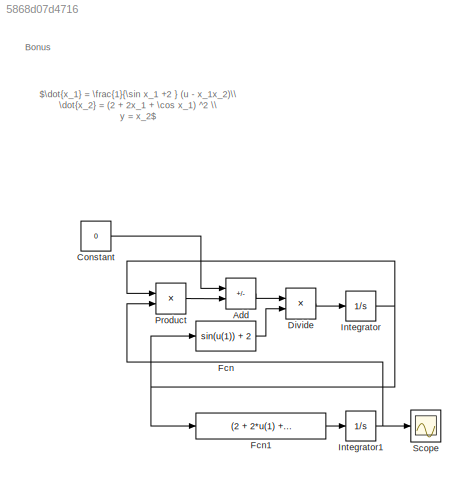
MODEL slx_5868d07d4716
KIND model
CONFIG AbsTol = auto
CONFIG EnableMultiTasking = off
CONFIG FixedStep = auto
CONFIG MaxStep = auto
CONFIG MinStep = auto
CONFIG RelTol = 1e-8
CONFIG SampleTimeConstraint = Unconstrained
CONFIG Solver = ode45
CONFIG SolverName = ode45
CONFIG StartTime = 0.0
CONFIG StopTime = 10
BLOCK [Sum] Add
  IconShape = rectangular
  Inputs = +-
  Ports = [2, 1]
BLOCK [Constant] Constant
  Value = 0
BLOCK [Product] Divide
  Inputs = */
  Ports = [2, 1]
BLOCK [Fcn] Fcn
  Expr = sin(u(1)) + 2
BLOCK [Fcn] Fcn1
  Expr = (2 + 2*u(1) + cos(u(1)))^2
BLOCK [Integrator] Integrator
  InitialCondition = -1.18715
  Ports = [1, 1]
BLOCK [Integrator] Integrator1
  Ports = [1, 1]
BLOCK [Product] Product
  Ports = [2, 1]
BLOCK [Scope] Scope
  Floating = off
  NumInputPorts = 1
  Ports = [1]
  ScopeSpecificationString = Simulink.scopes.TimeScopeBlockCfg('CurrentConfiguration', extmgr.ConfigurationSet(extmgr.Configuration('Core','General UI',true),extmgr.Configuration('Core','Source UI',true),extmgr.Configuration('Sources','WiredSimulink',true,'DataLoggingVariableName','ScopeData1'),extmgr.Configuration('Visuals','Time Domain',true,'SerializedDisplays',{struct('MinYLimReal','-0.00000000002','MaxYLimReal','0.000000...<+1443ch>
ANNOTATION (root): $\dot{x_1} = \frac{1}{\sin x_1 +2 } (u - x_1x_2)\\ \dot{x_2} = (2 + 2x_1 + \cos x_1) ^2 \\ y = x_2$
ANNOTATION (root): Bonus
LINE Add:1 -> Divide:1
LINE Constant:1 -> Add:1
LINE Divide:1 -> Integrator:1
LINE Fcn1:1 -> Integrator1:1
LINE Fcn:1 -> Divide:2
NET Integrator1:1 -> Product:2, Scope:1
NET Integrator:1 -> Fcn1:1, Fcn:1, Product:1
LINE Product:1 -> Add:2
note: NET lines group one-source signal fan-out (src -> all destinations, sorted); 1:1 wires keep LINE
